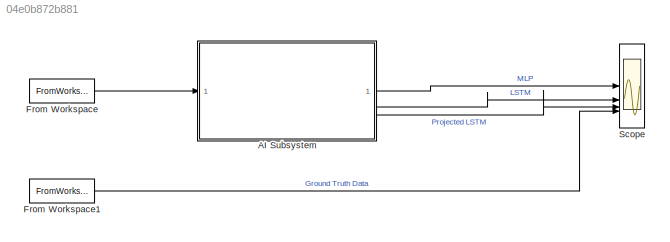
MODEL slx_04e0b872b881
KIND model
CONFIG FixedStep = 1
CONFIG InitFcn = clear\nS = load("01_TEST_LGHG2@n10degC_Norm_(05_Inputs).mat");\nsteps = size(S.X,2);\nt = (0:(steps-1))';\nX_in = timeseries(single(S.X'), t);\ntrue_SOC = timeseries(single(S.Y'), t);
CONFIG SolverName = FixedStepDiscrete
CONFIG StopTime = 100
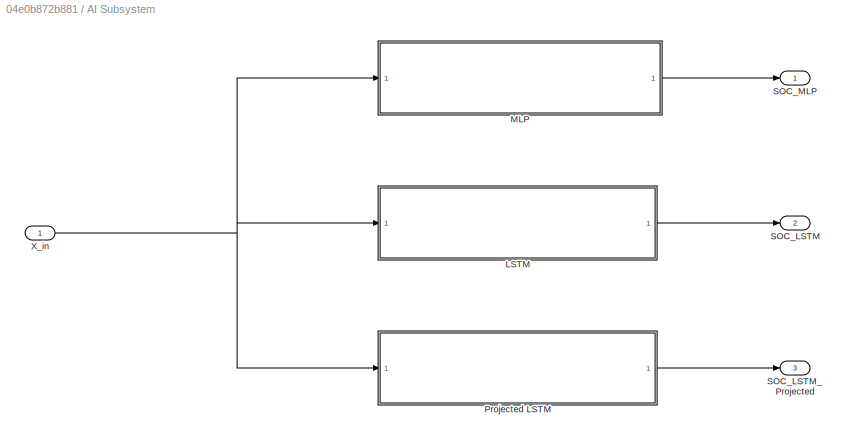
BLOCK [SubSystem] AI Subsystem
  RTWSystemCode = Nonreusable function
  TreatAsAtomicUnit = on
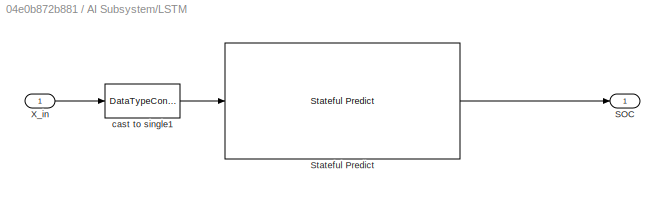
BLOCK [SubSystem] AI Subsystem/LSTM
  RTWSystemCode = Nonreusable function
  TreatAsAtomicUnit = on
BLOCK [Outport] AI Subsystem/LSTM/SOC
BLOCK [Reference] AI Subsystem/LSTM/Stateful Predict  REF=deeplib/Stateful Predict
  SourceBlock = deeplib/Stateful Predict
  SourceType = Stateful Predict
BLOCK [Inport] AI Subsystem/LSTM/X_in
BLOCK [DataTypeConversion] AI Subsystem/LSTM/cast to single1
  OutDataTypeStr = single
  RndMeth = Floor
  SaturateOnIntegerOverflow = off
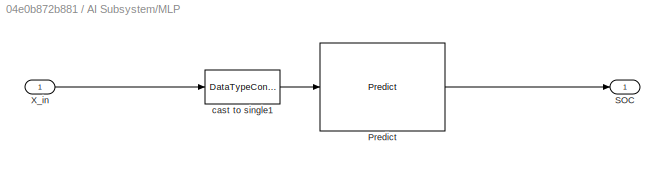
BLOCK [SubSystem] AI Subsystem/MLP
  RTWSystemCode = Nonreusable function
  TreatAsAtomicUnit = on
BLOCK [Reference] AI Subsystem/MLP/Predict  REF=deeplib/Predict
  SourceBlock = deeplib/Predict
  SourceType = Predict
BLOCK [Outport] AI Subsystem/MLP/SOC
BLOCK [Inport] AI Subsystem/MLP/X_in
BLOCK [DataTypeConversion] AI Subsystem/MLP/cast to single1
  OutDataTypeStr = single
  RndMeth = Floor
  SaturateOnIntegerOverflow = off
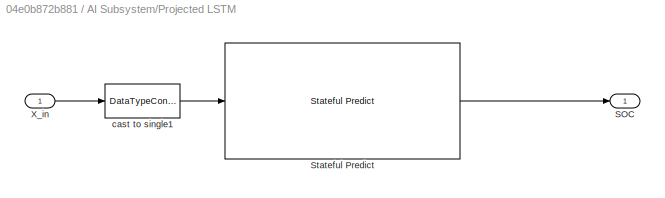
BLOCK [SubSystem] AI Subsystem/Projected LSTM
  RTWSystemCode = Nonreusable function
  TreatAsAtomicUnit = on
BLOCK [Outport] AI Subsystem/Projected LSTM/SOC
BLOCK [Reference] AI Subsystem/Projected LSTM/Stateful Predict  REF=deeplib/Stateful Predict
  SourceBlock = deeplib/Stateful Predict
  SourceType = Stateful Predict
BLOCK [Inport] AI Subsystem/Projected LSTM/X_in
BLOCK [DataTypeConversion] AI Subsystem/Projected LSTM/cast to single1
  OutDataTypeStr = single
  RndMeth = Floor
  SaturateOnIntegerOverflow = off
BLOCK [Outport] AI Subsystem/SOC_LSTM
  Port = 2
BLOCK [Outport] AI Subsystem/SOC_LSTM_Projected
  Port = 3
BLOCK [Outport] AI Subsystem/SOC_MLP
BLOCK [Inport] AI Subsystem/X_in
BLOCK [FromWorkspace] From Workspace
  SampleTime = 1
  VariableName = X_in
BLOCK [FromWorkspace] From Workspace1
  SampleTime = 1
  VariableName = true_SOC
BLOCK [Scope] Scope
  ActiveDisplayYMaximum = 2.2659924579613122
  ActiveDisplayYMinimum = -1.8850061940228491
  Floating = off
  GraphicalSettings = {"Style":{"BackgroundColor":[0.12941176470588237,0.12941176470588237,0.12941176470588237],"AxesColor":[0.07058823529411765,0.07058823529411765,0.07058823529411765],"LabelsColor":[0.8509803921568627,0.8509803921568627,0.8509803921568627],"PreserveColors":false,"Visible":[true,true,true,true],"LineStyle":["-","-","-","-"],"LineWidth":[1.5,1.5,1.5,1.5],"BarWidth":[0.9,0.9,0.9,0.9],"LineColor":["auto"...<+2394ch>
  MultipleDisplayCache = [{"MaxYLimMag":1.0443342179059982,"MaxYLimReal":2.2659924579613122,"MinYLimMag":0.68572719395160675,"MinYLimReal":-1.8850061940228491,"PlotAsMagnitudePhase":false,"ShowGrid":true,"ShowLegend":true,"Title":"%<SignalLabel>","YLabel":""}]
  NumInputPorts = 4
  ScopeFrameLocation = window
  ShowLegend = on
  WasSavedAsWebScope = on
  WindowPosition = [393.000000,232.000000,750.000000,497.000000,]
LINE AI Subsystem/LSTM/Stateful Predict:1 -> AI Subsystem/LSTM/SOC:1
LINE AI Subsystem/LSTM/X_in:1 -> AI Subsystem/LSTM/cast to single1:1
LINE AI Subsystem/LSTM/cast to single1:1 -> AI Subsystem/LSTM/Stateful Predict:1
LINE AI Subsystem/LSTM:1 -> AI Subsystem/SOC_LSTM:1
LINE AI Subsystem/MLP/Predict:1 -> AI Subsystem/MLP/SOC:1
LINE AI Subsystem/MLP/X_in:1 -> AI Subsystem/MLP/cast to single1:1
LINE AI Subsystem/MLP/cast to single1:1 -> AI Subsystem/MLP/Predict:1
LINE AI Subsystem/MLP:1 -> AI Subsystem/SOC_MLP:1
LINE AI Subsystem/Projected LSTM/Stateful Predict:1 -> AI Subsystem/Projected LSTM/SOC:1
LINE AI Subsystem/Projected LSTM/X_in:1 -> AI Subsystem/Projected LSTM/cast to single1:1
LINE AI Subsystem/Projected LSTM/cast to single1:1 -> AI Subsystem/Projected LSTM/Stateful Predict:1
LINE AI Subsystem/Projected LSTM:1 -> AI Subsystem/SOC_LSTM_Projected:1
NET AI Subsystem/X_in:1 -> AI Subsystem/LSTM:1, AI Subsystem/MLP:1, AI Subsystem/Projected LSTM:1
LINE AI Subsystem:1 -> Scope:1
LINE AI Subsystem:2 -> Scope:2
LINE AI Subsystem:3 -> Scope:3
LINE From Workspace1:1 -> Scope:4
LINE From Workspace:1 -> AI Subsystem:1
note: NET lines group one-source signal fan-out (src -> all destinations, sorted); 1:1 wires keep LINE
